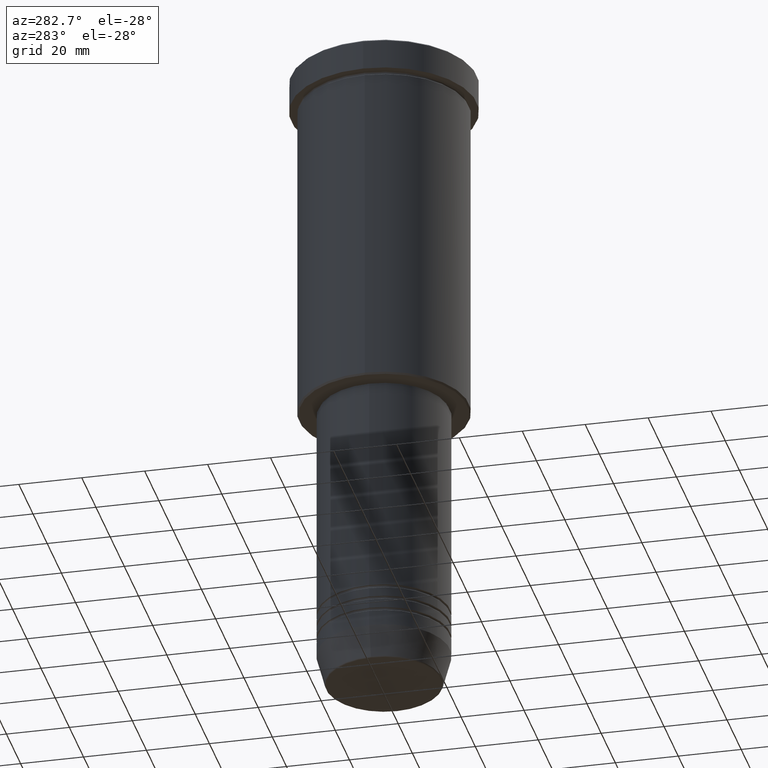
[diagram: clean part render]
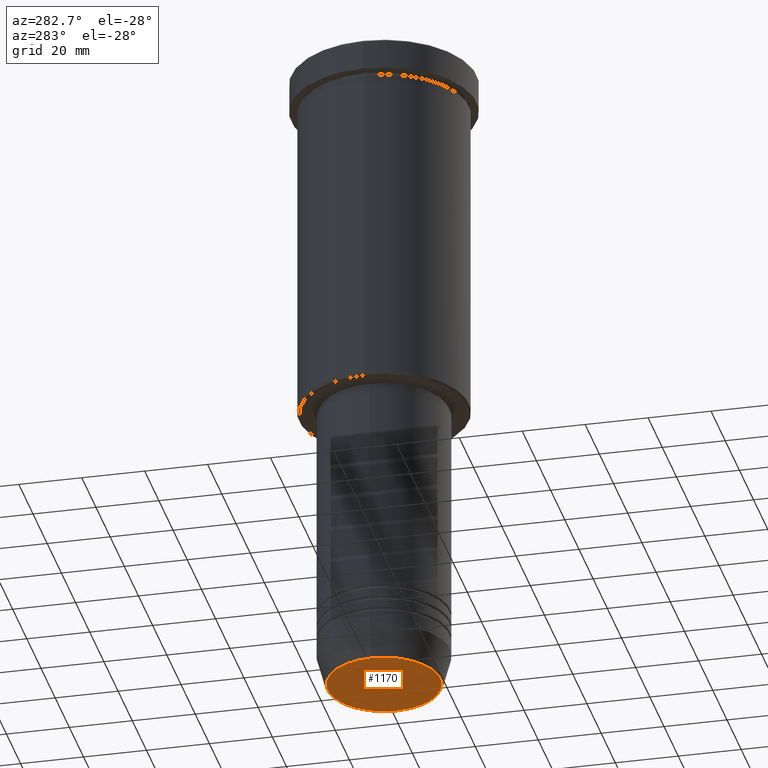
[diagram: same view with one face highlighted and labeled with its STEP entity id]
A machine part, auxiliary view. The second image highlights one B-rep face of the part: STEP entity #1170.
In plain terms, the highlighted planar face has unit normal (0, -0, 1).
Its self-contained STEP definition (entity closure, byte-faithful):
#32 = AXIS2_PLACEMENT_3D ( 'NONE', #712, #871, #1141 ) ;
#125 = CARTESIAN_POINT ( 'NONE',  ( 0.000000000000000000, 0.000000000000000000, -211.0000000000000284 ) ) ;
#137 = DIRECTION ( 'NONE',  ( 0.000000000000000000, -0.000000000000000000, 1.000000000000000000 ) ) ;
#164 = CARTESIAN_POINT ( 'NONE',  ( 17.93684458169929030, 0.000000000000000000, -211.0000000000000284 ) ) ;
#203 = VERTEX_POINT ( 'NONE', #164 ) ;
#205 = CIRCLE ( 'NONE', #32, 17.93684458169929030 ) ;
#239 = DIRECTION ( 'NONE',  ( 1.000000000000000000, 0.000000000000000000, 0.000000000000000000 ) ) ;
#289 = CIRCLE ( 'NONE', #696, 17.93684458169929030 ) ;
#303 = PLANE ( 'NONE',  #507 ) ;
#328 = DIRECTION ( 'NONE',  ( 1.000000000000000000, 0.000000000000000000, 0.000000000000000000 ) ) ;
#375 = ORIENTED_EDGE ( 'NONE', *, *, #625, .T. ) ;
#507 = AXIS2_PLACEMENT_3D ( 'NONE', #125, #137, #328 ) ;
#623 = EDGE_LOOP ( 'NONE', ( #1013, #375 ) ) ;
#625 = EDGE_CURVE ( 'NONE', #921, #203, #205, .T. ) ;
#696 = AXIS2_PLACEMENT_3D ( 'NONE', #1050, #1126, #239 ) ;
#712 = CARTESIAN_POINT ( 'NONE',  ( 0.000000000000000000, 0.000000000000000000, -211.0000000000000284 ) ) ;
#797 = EDGE_CURVE ( 'NONE', #203, #921, #289, .T. ) ;
#871 = DIRECTION ( 'NONE',  ( 0.000000000000000000, 0.000000000000000000, -1.000000000000000000 ) ) ;
#921 = VERTEX_POINT ( 'NONE', #1070 ) ;
#1013 = ORIENTED_EDGE ( 'NONE', *, *, #797, .T. ) ;
#1050 = CARTESIAN_POINT ( 'NONE',  ( 0.000000000000000000, 0.000000000000000000, -211.0000000000000284 ) ) ;
#1070 = CARTESIAN_POINT ( 'NONE',  ( -17.93684458169929030, 2.226202879662624346E-15, -211.0000000000000284 ) ) ;
#1099 = FACE_OUTER_BOUND ( 'NONE', #623, .T. ) ;
#1126 = DIRECTION ( 'NONE',  ( 0.000000000000000000, 0.000000000000000000, -1.000000000000000000 ) ) ;
#1141 = DIRECTION ( 'NONE',  ( 1.000000000000000000, 0.000000000000000000, 0.000000000000000000 ) ) ;
#1170 = ADVANCED_FACE ( 'NONE', ( #1099 ), #303, .F. ) ;